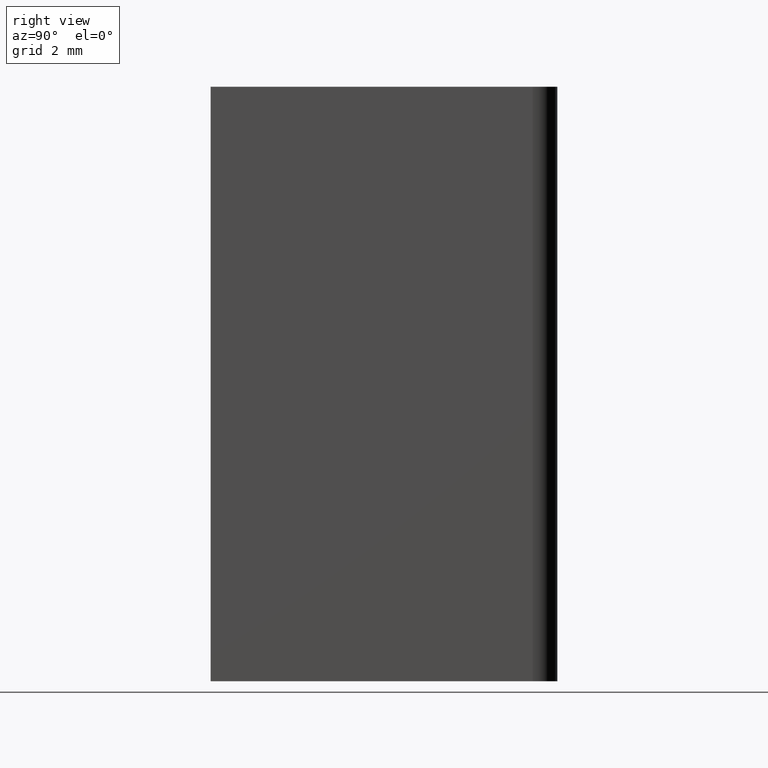
[diagram: clean part render]
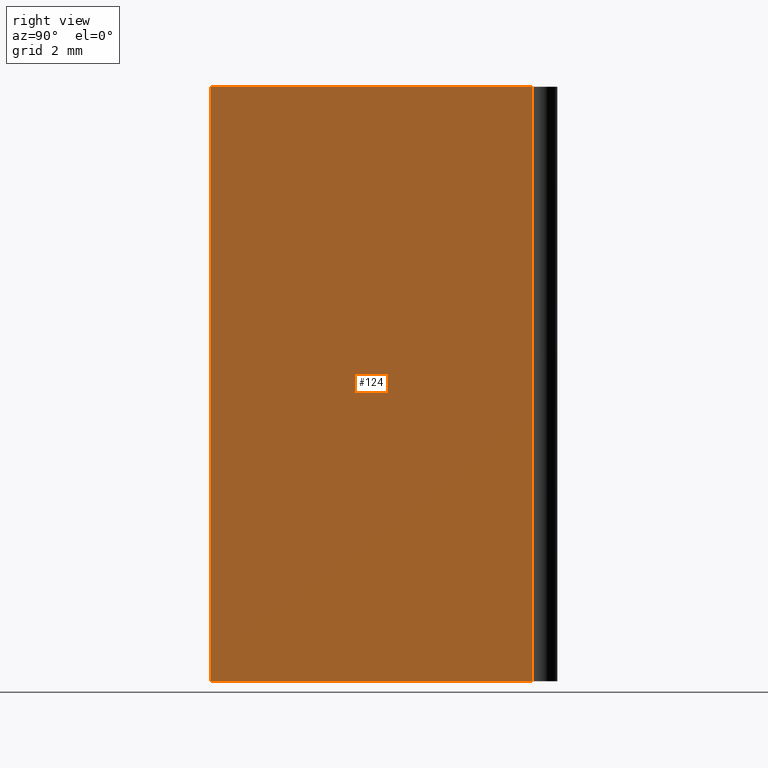
[diagram: same view with one face highlighted and labeled with its STEP entity id]
A machine part, right view. The second image highlights one B-rep face of the part: STEP entity #124.
In plain terms, the highlighted planar face has unit normal (1, 0, 0).
Its self-contained STEP definition (entity closure, byte-faithful):
#21=FACE_OUTER_BOUND('',#28,.T.);
#28=EDGE_LOOP('',(#101,#102,#103,#104));
#33=LINE('',#196,#46);
#42=LINE('',#217,#55);
#43=LINE('',#220,#56);
#44=LINE('',#221,#57);
#46=VECTOR('',#163,10.);
#55=VECTOR('',#182,10.);
#56=VECTOR('',#185,10.);
#57=VECTOR('',#186,10.);
#59=VERTEX_POINT('',#194);
#60=VERTEX_POINT('',#195);
#67=VERTEX_POINT('',#215);
#68=VERTEX_POINT('',#219);
#69=EDGE_CURVE('',#59,#60,#33,.T.);
#80=EDGE_CURVE('',#67,#60,#42,.T.);
#81=EDGE_CURVE('',#67,#68,#43,.T.);
#82=EDGE_CURVE('',#59,#68,#44,.T.);
#101=ORIENTED_EDGE('',*,*,#81,.T.);
#102=ORIENTED_EDGE('',*,*,#82,.F.);
#103=ORIENTED_EDGE('',*,*,#69,.T.);
#104=ORIENTED_EDGE('',*,*,#80,.F.);
#117=PLANE('',#156);
#124=ADVANCED_FACE('',(#21),#117,.T.);
#156=AXIS2_PLACEMENT_3D('',#218,#183,#184);
#163=DIRECTION('',(-3.73632748671928E-16,1.,0.));
#182=DIRECTION('',(0.,0.,-1.));
#183=DIRECTION('center_axis',(1.,3.73632748671928E-16,0.));
#184=DIRECTION('ref_axis',(0.,0.,-1.));
#185=DIRECTION('',(3.73632748671928E-16,-1.,0.));
#186=DIRECTION('',(0.,0.,1.));
#194=CARTESIAN_POINT('',(4.44089209850063E-15,2.22044604925031E-15,-6.));
#195=CARTESIAN_POINT('',(2.0122792321331E-15,6.5,-6.));
#196=CARTESIAN_POINT('',(2.0122792321331E-15,6.5,-6.));
#215=CARTESIAN_POINT('',(2.0122792321331E-15,6.5,6.));
#217=CARTESIAN_POINT('',(2.0122792321331E-15,6.5,0.));
#218=CARTESIAN_POINT('Origin',(2.0122792321331E-15,6.5,0.));
#219=CARTESIAN_POINT('',(4.44089209850063E-15,2.22044604925031E-15,6.));
#220=CARTESIAN_POINT('',(2.0122792321331E-15,6.5,6.));
#221=CARTESIAN_POINT('',(4.44089209850063E-15,2.22044604925031E-15,0.));